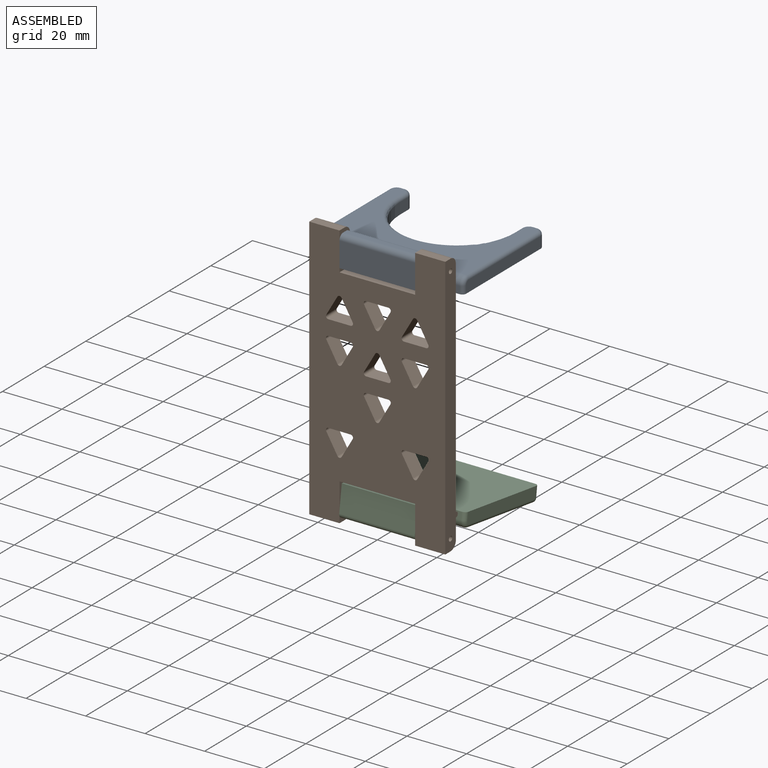
[diagram: assembled view]
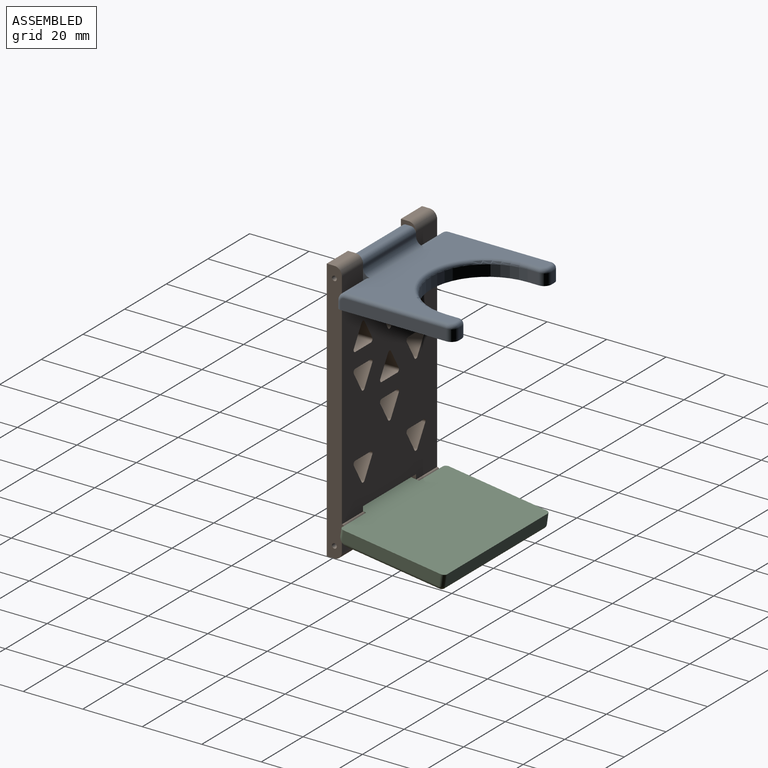
[diagram: assembled view, second angle]
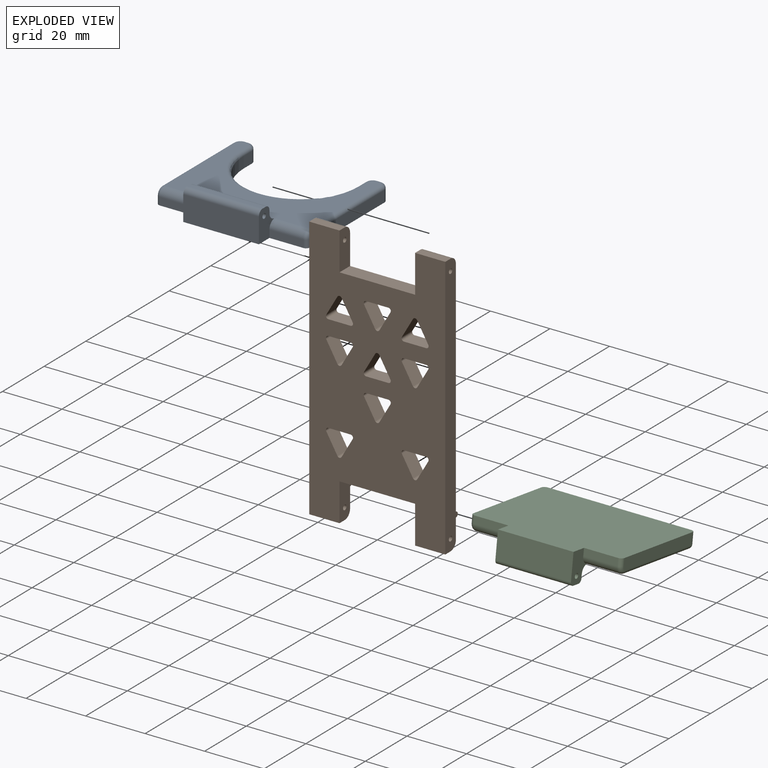
[diagram: exploded view]
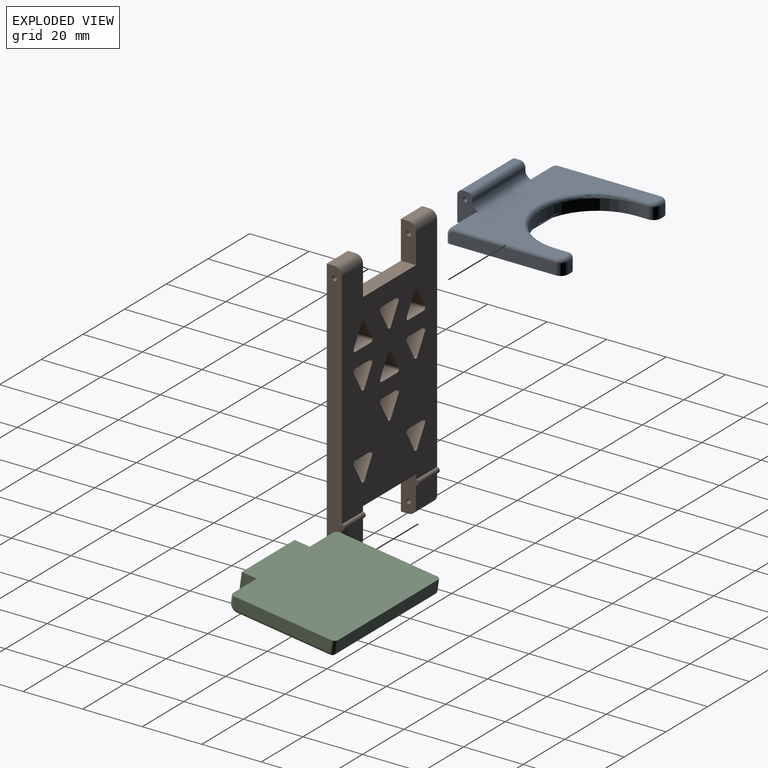
[diagram: exploded view, second angle]
ASSEMBLY  parts=3 mates=2
PART A: 41 faces, bbox 51.2x10.2x44.7 mm
  f0: plane 48.26x35.56mm, normal (0,-1,0), area 859.7mm2, adj f17,f18,f19,f28,f29,f30,f31,f32
  f1: plane 3.81x3.81mm, normal (1,0,0), area 14.5mm2, adj f7,f8,f22,f34
  f2: plane 3.81x1.27mm, normal (0,0,1), area 4.8mm2, adj f8,f22,f23,f36
  f3: plane 35.56x3.81mm, normal (-1,0,0), area 135.1mm2, adj f8,f23,f38,f39,f40
  f4: plane 11.43x2.54mm, normal (0,0,-1), area 29mm2, adj f5,f8,f18,f40
  f5: plane 10.16x7.62mm, normal (-1,0,0), area 50.9mm2, adj f4,f6,f8,f14,f15,f16,f18,f19
  f6: plane 25.4x8.38mm, normal (0,0,-1), area 212.9mm2, adj f5,f8,f13,f24
  f7: cylinder r=19.05mm len=38.1mm, axis (0,1,0), area 228mm2, adj f1,f8,f9,f33
  f8: plane 50.8x44.45mm, normal (0,1,0), area 1310.8mm2, adj f1,f2,f3,f4,f5,f6,f7,f9
  f9: plane 3.81x3.81mm, normal (-1,0,0), area 14.5mm2, adj f7,f8,f21,f32
  f10: plane 3.81x1.27mm, normal (0,0,1), area 4.8mm2, adj f8,f20,f21,f30
  f11: plane 35.56x3.81mm, normal (1,0,0), area 135.1mm2, adj f8,f20,f26,f27,f28
  f12: plane 11.43x2.54mm, normal (0,0,-1), area 29mm2, adj f8,f13,f17,f26
  f13: plane 10.16x7.62mm, normal (1,0,0), area 50.9mm2, adj f6,f8,f12,f14,f15,f16,f17,f19
  f14: plane 25.4x0.76mm, normal (0,0,1), area 19.4mm2, adj f5,f13,f19,f25
  f15: plane 25.4x1.52mm, normal (0,-1,0), area 38.7mm2, adj f5,f13,f24,f25
  f16: cylinder r=0.81mm len=25.4mm, axis (-1,0,0), area 129.9mm2, adj f5,f13
  f17: cylinder r=2.54mm len=11.43mm, axis (1,0,0), area 45.6mm2, adj f0,f12,f13,f27
  f18: cylinder r=2.54mm len=11.43mm, axis (-1,0,0), area 45.6mm2, adj f0,f4,f5,f39
  f19: cylinder r=2.54mm len=25.4mm, axis (-1,0,0), area 101.3mm2, adj f0,f5,f13,f14
  f20: cylinder r=2.54mm len=3.81mm, axis (0,1,0), area 15.2mm2, adj f8,f10,f11,f29
  f21: cylinder r=2.54mm len=3.81mm, axis (0,-1,0), area 15.2mm2, adj f8,f9,f10,f31
  f22: cylinder r=2.54mm len=3.81mm, axis (0,-1,0), area 15.2mm2, adj f1,f2,f8,f35
  f23: cylinder r=2.54mm len=3.81mm, axis (0,1,0), area 15.2mm2, adj f2,f3,f8,f37
  f24: cylinder r=1.78mm len=25.4mm, axis (-1,0,0), area 70.9mm2, adj f5,f6,f13,f15
  f25: cylinder r=1.78mm len=25.4mm, axis (1,0,0), area 70.9mm2, adj f5,f13,f14,f15
  f26: cylinder r=1.27mm len=2.54mm, axis (0,1,0), area 5.1mm2, adj f8,f11,f12,f27
  f27: torus R=1.27mm, axis (-1,0,0), area 6.5mm2, adj f11,f17,f26,f28
  f28: cylinder r=1.27mm len=34.29mm, axis (0,0,1), area 68.4mm2, adj f0,f11,f27,f29
  f29: torus R=1.27mm, axis (0,-1,0), area 6.5mm2, adj f0,f20,f28,f30
  f30: cylinder r=1.27mm len=1.27mm, axis (-1,0,0), area 2.5mm2, adj f0,f10,f29,f31
  f31: torus R=1.27mm, axis (0,-1,0), area 6.5mm2, adj f0,f21,f30,f32
  f32: cylinder r=1.27mm len=3.81mm, axis (0,0,-1), area 7.6mm2, adj f0,f9,f31,f33
  f33: torus R=20.32mm, axis (0,-1,0), area 122.3mm2, adj f0,f7,f32,f34
  f34: cylinder r=1.27mm len=3.81mm, axis (0,0,-1), area 7.6mm2, adj f0,f1,f33,f35
  f35: torus R=1.27mm, axis (0,-1,0), area 6.5mm2, adj f0,f22,f34,f36
  f36: cylinder r=1.27mm len=1.27mm, axis (1,0,0), area 2.5mm2, adj f0,f2,f35,f37
  f37: torus R=1.27mm, axis (0,-1,0), area 6.5mm2, adj f0,f23,f36,f38
  f38: cylinder r=1.27mm len=34.29mm, axis (0,0,1), area 68.4mm2, adj f0,f3,f37,f39
  f39: torus R=1.27mm, axis (1,0,0), area 6.5mm2, adj f3,f18,f38,f40
  f40: cylinder r=1.27mm len=2.54mm, axis (0,1,0), area 5.1mm2, adj f3,f4,f8,f39
PART B: 80 faces, bbox 45.7x6x88.9 mm
  f0: plane 75.31x45.72mm, normal (0,1,0), area 2744.5mm2, adj f2,f4,f5,f6,f9,f10,f12,f13
  f1: plane 88.9x45.72mm, normal (0,-1,0), area 3020.6mm2, adj f4,f5,f6,f7,f9,f10,f11,f12
  f2: cylinder r=0.89mm len=10.16mm, axis (1,0,0), area 28.4mm2, adj f0,f3,f4,f10
  f3: plane 10.16x6.73mm, normal (0,1,0), area 68.4mm2, adj f2,f4,f10,f23
  f4: plane 88.9x5.97mm, normal (-1,0,0), area 445.9mm2, adj f0,f1,f2,f3,f7,f11,f19,f20
  f5: plane 25.4x5.08mm, normal (0,0,1), area 129mm2, adj f0,f1,f6,f15
  f6: plane 12.7x5.08mm, normal (1,0,0), area 61mm2, adj f0,f1,f5,f7,f20,f24
  f7: plane 10.16x2.54mm, normal (0,0,1), area 25.8mm2, adj f1,f4,f6,f24
  f8: plane 10.16x6.73mm, normal (0,1,0), area 68.4mm2, adj f12,f13,f22,f25
  f9: plane 25.4x5.08mm, normal (0,0,-1), area 129mm2, adj f0,f1,f10,f13
  f10: plane 12.7x5.97mm, normal (1,0,0), area 62.3mm2, adj f0,f1,f2,f3,f9,f11,f19,f23
  f11: plane 10.16x2.54mm, normal (0,0,-1), area 25.8mm2, adj f1,f4,f10,f23
  f12: plane 88.9x5.97mm, normal (1,0,0), area 445.9mm2, adj f0,f1,f8,f14,f16,f17,f18,f21
  f13: plane 12.7x5.97mm, normal (-1,0,0), area 62.3mm2, adj f0,f1,f8,f9,f14,f18,f22,f25
  f14: plane 10.16x2.54mm, normal (0,0,-1), area 25.8mm2, adj f1,f12,f13,f22
  f15: plane 12.7x5.08mm, normal (-1,0,0), area 61mm2, adj f0,f1,f5,f16,f17,f21
  f16: plane 10.16x2.54mm, normal (0,0,1), area 25.8mm2, adj f1,f12,f15,f21
  f17: cylinder r=0.81mm len=10.16mm, axis (-1,0,0), area 52mm2, adj f12,f15
  f18: cylinder r=0.81mm len=10.16mm, axis (-1,0,0), area 52mm2, adj f12,f13
  f19: cylinder r=0.81mm len=10.16mm, axis (-1,0,0), area 52mm2, adj f4,f10
  f20: cylinder r=0.81mm len=10.16mm, axis (-1,0,0), area 52mm2, adj f4,f6
  f21: cylinder r=2.54mm len=10.16mm, axis (1,0,0), area 40.5mm2, adj f0,f12,f15,f16
  f22: cylinder r=2.54mm len=10.16mm, axis (1,0,0), area 40.5mm2, adj f8,f12,f13,f14
  f23: cylinder r=2.54mm len=10.16mm, axis (-1,0,0), area 40.5mm2, adj f3,f4,f10,f11
  f24: cylinder r=2.54mm len=10.16mm, axis (-1,0,0), area 40.5mm2, adj f0,f4,f6,f7
  f25: cylinder r=0.89mm len=10.16mm, axis (1,0,0), area 28.4mm2, adj f0,f8,f12,f13
  f26: cylinder r=0.8mm len=5.08mm, axis (0,1,0), area 8.6mm2, adj f0,f1,f27,f31
  f27: plane 7.48x5.08mm, normal (0,0,-1), area 38mm2, adj f0,f1,f26,f28
  f28: cylinder r=0.8mm len=5.08mm, axis (0,1,0), area 8.6mm2, adj f0,f1,f27,f29
  f29: plane 6.48x5.08mm, normal (-0.87,0,0.5), area 38mm2, adj f0,f1,f28,f30
  f30: cylinder r=0.8mm len=5.08mm, axis (0,1,0), area 8.6mm2, adj f0,f1,f29,f31
  f31: plane 6.48x5.08mm, normal (0.87,0,0.5), area 38mm2, adj f0,f1,f26,f30
  f32: cylinder r=0.8mm len=5.08mm, axis (0,1,0), area 8.6mm2, adj f0,f1,f33,f37
  f33: plane 7.48x5.08mm, normal (0,0,-1), area 38mm2, adj f0,f1,f32,f34
  f34: cylinder r=0.8mm len=5.08mm, axis (0,1,0), area 8.6mm2, adj f0,f1,f33,f35
  f35: plane 6.48x5.08mm, normal (-0.87,0,0.5), area 38mm2, adj f0,f1,f34,f36
  f36: cylinder r=0.8mm len=5.08mm, axis (0,1,0), area 8.6mm2, adj f0,f1,f35,f37
  f37: plane 6.48x5.08mm, normal (0.87,0,0.5), area 38mm2, adj f0,f1,f32,f36
  f38: cylinder r=0.8mm len=5.08mm, axis (0,1,0), area 8.6mm2, adj f0,f1,f39,f43
  f39: plane 6.48x5.08mm, normal (0.87,0,-0.5), area 38mm2, adj f0,f1,f38,f40
  f40: cylinder r=0.8mm len=5.08mm, axis (0,1,0), area 8.6mm2, adj f0,f1,f39,f41
  f41: plane 6.48x5.08mm, normal (-0.87,0,-0.5), area 38mm2, adj f0,f1,f40,f42
  f42: cylinder r=0.8mm len=5.08mm, axis (0,1,0), area 8.6mm2, adj f0,f1,f41,f43
  f43: plane 7.48x5.08mm, normal (0,0,1), area 38mm2, adj f0,f1,f38,f42
  f44: cylinder r=0.8mm len=5.08mm, axis (0,1,0), area 8.6mm2, adj f0,f1,f45,f49
  f45: plane 7.48x5.08mm, normal (0,0,-1), area 38mm2, adj f0,f1,f44,f46
  f46: cylinder r=0.8mm len=5.08mm, axis (0,1,0), area 8.6mm2, adj f0,f1,f45,f47
  f47: plane 6.48x5.08mm, normal (-0.87,0,0.5), area 38mm2, adj f0,f1,f46,f48
  f48: cylinder r=0.8mm len=5.08mm, axis (0,1,0), area 8.6mm2, adj f0,f1,f47,f49
  f49: plane 6.48x5.08mm, normal (0.87,0,0.5), area 38mm2, adj f0,f1,f44,f48
  f50: cylinder r=0.8mm len=5.08mm, axis (0,1,0), area 8.6mm2, adj f0,f1,f51,f55
  f51: plane 6.48x5.08mm, normal (0.87,0,-0.5), area 38mm2, adj f0,f1,f50,f52
  f52: cylinder r=0.8mm len=5.08mm, axis (0,1,0), area 8.6mm2, adj f0,f1,f51,f53
  f53: plane 6.48x5.08mm, normal (-0.87,0,-0.5), area 38mm2, adj f0,f1,f52,f54
  f54: cylinder r=0.8mm len=5.08mm, axis (0,1,0), area 8.6mm2, adj f0,f1,f53,f55
  f55: plane 7.48x5.08mm, normal (0,0,1), area 38mm2, adj f0,f1,f50,f54
  f56: cylinder r=0.8mm len=5.08mm, axis (0,1,0), area 8.6mm2, adj f0,f1,f57,f61
  f57: plane 7.48x5.08mm, normal (0,0,-1), area 38mm2, adj f0,f1,f56,f58
  f58: cylinder r=0.8mm len=5.08mm, axis (0,1,0), area 8.6mm2, adj f0,f1,f57,f59
  f59: plane 6.48x5.08mm, normal (-0.87,0,0.5), area 38mm2, adj f0,f1,f58,f60
  f60: cylinder r=0.8mm len=5.08mm, axis (0,1,0), area 8.6mm2, adj f0,f1,f59,f61
  f61: plane 6.48x5.08mm, normal (0.87,0,0.5), area 38mm2, adj f0,f1,f56,f60
  f62: cylinder r=0.8mm len=5.08mm, axis (0,1,0), area 8.6mm2, adj f0,f1,f63,f67
  f63: plane 6.48x5.08mm, normal (0.87,0,-0.5), area 38mm2, adj f0,f1,f62,f64
  f64: cylinder r=0.8mm len=5.08mm, axis (0,1,0), area 8.6mm2, adj f0,f1,f63,f65
  f65: plane 6.48x5.08mm, normal (-0.87,0,-0.5), area 38mm2, adj f0,f1,f64,f66
  f66: cylinder r=0.8mm len=5.08mm, axis (0,1,0), area 8.6mm2, adj f0,f1,f65,f67
  f67: plane 7.48x5.08mm, normal (0,0,1), area 38mm2, adj f0,f1,f62,f66
  f68: cylinder r=0.8mm len=5.08mm, axis (0,1,0), area 8.6mm2, adj f0,f1,f69,f73
  f69: plane 7.48x5.08mm, normal (0,0,-1), area 38mm2, adj f0,f1,f68,f70
  f70: cylinder r=0.8mm len=5.08mm, axis (0,1,0), area 8.6mm2, adj f0,f1,f69,f71
  f71: plane 6.48x5.08mm, normal (-0.87,0,0.5), area 38mm2, adj f0,f1,f70,f72
  f72: cylinder r=0.8mm len=5.08mm, axis (0,1,0), area 8.6mm2, adj f0,f1,f71,f73
  f73: plane 6.48x5.08mm, normal (0.87,0,0.5), area 38mm2, adj f0,f1,f68,f72
  f74: cylinder r=0.8mm len=5.08mm, axis (0,1,0), area 8.6mm2, adj f0,f1,f75,f79
  f75: plane 7.48x5.08mm, normal (0,0,-1), area 38mm2, adj f0,f1,f74,f76
  f76: cylinder r=0.8mm len=5.08mm, axis (0,1,0), area 8.6mm2, adj f0,f1,f75,f77
  f77: plane 6.48x5.08mm, normal (-0.87,0,0.5), area 38mm2, adj f0,f1,f76,f78
  f78: cylinder r=0.8mm len=5.08mm, axis (0,1,0), area 8.6mm2, adj f0,f1,f77,f79
  f79: plane 6.48x5.08mm, normal (0.87,0,0.5), area 38mm2, adj f0,f1,f74,f78
PART C: 29 faces, bbox 50.8x10.2x40.6 mm
  f0: plane 33.02x3.81mm, normal (1,0,0), area 125.5mm2, adj f7,f20,f22,f24,f28
  f1: plane 33.02x3.81mm, normal (-1,0,0), area 125.5mm2, adj f7,f16,f17,f18,f26
  f2: plane 48.26x31.75mm, normal (0,-1,0), area 1532.3mm2, adj f13,f18,f21,f22,f25,f27
  f3: plane 25.4x8.89mm, normal (0,0,1), area 225.8mm2, adj f4,f7,f8,f14
  f4: plane 10.16x7.62mm, normal (-1,0,0), area 51.6mm2, adj f3,f5,f7,f10,f11,f12,f13,f14
  f5: plane 11.43x2.54mm, normal (0,0,1), area 29mm2, adj f4,f7,f16,f25
  f6: plane 48.26x3.81mm, normal (0,0,-1), area 183.9mm2, adj f7,f17,f21,f24
  f7: plane 50.8x40.64mm, normal (0,1,0), area 1934.1mm2, adj f0,f1,f3,f4,f5,f6,f8,f9
  f8: plane 10.16x7.62mm, normal (1,0,0), area 51.6mm2, adj f3,f7,f9,f10,f11,f12,f13,f14
  f9: plane 11.43x2.54mm, normal (0,0,1), area 29mm2, adj f7,f8,f20,f27
  f10: plane 25.4x1.27mm, normal (0,0,-1), area 32.3mm2, adj f4,f8,f13,f15
  f11: plane 25.4x2.54mm, normal (0,-1,0), area 64.5mm2, adj f4,f8,f14,f15
  f12: cylinder r=0.81mm len=25.4mm, axis (1,0,0), area 129.9mm2, adj f4,f8
  f13: cylinder r=2.54mm len=25.4mm, axis (1,0,0), area 101.3mm2, adj f2,f4,f8,f10
  f14: cylinder r=1.27mm len=25.4mm, axis (1,0,0), area 50.7mm2, adj f3,f4,f8,f11
  f15: cylinder r=1.27mm len=25.4mm, axis (-1,0,0), area 50.7mm2, adj f4,f8,f10,f11
  f16: cylinder r=1.27mm len=2.54mm, axis (0,1,0), area 5.1mm2, adj f1,f5,f7,f26
  f17: cylinder r=1.27mm len=3.81mm, axis (0,1,0), area 7.6mm2, adj f1,f6,f7,f19
  f18: cylinder r=1.27mm len=31.75mm, axis (0,0,1), area 63.3mm2, adj f1,f2,f19,f26
  f19: sphere r=1.27mm, area 2.5mm2, adj f17,f18,f21
  f20: cylinder r=1.27mm len=2.54mm, axis (0,1,0), area 5.1mm2, adj f0,f7,f9,f28
  f21: cylinder r=1.27mm len=48.26mm, axis (-1,0,0), area 96.3mm2, adj f2,f6,f19,f23
  f22: cylinder r=1.27mm len=31.75mm, axis (0,0,1), area 63.3mm2, adj f0,f2,f23,f28
  f23: sphere r=1.27mm, area 2.5mm2, adj f21,f22,f24
  f24: cylinder r=1.27mm len=3.81mm, axis (0,1,0), area 7.6mm2, adj f0,f6,f7,f23
  f25: cylinder r=2.54mm len=11.43mm, axis (1,0,0), area 45.6mm2, adj f2,f4,f5,f26
  f26: torus R=1.27mm, axis (1,0,0), area 6.5mm2, adj f1,f16,f18,f25
  f27: cylinder r=2.54mm len=11.43mm, axis (-1,0,0), area 45.6mm2, adj f2,f8,f9,f28
  f28: torus R=1.27mm, axis (-1,0,0), area 6.5mm2, adj f0,f20,f22,f27
PLACE A rot(axis=(-1,0,0),90deg) t=(0,-41.91,33.6)mm
PLACE B t=(0,5.08,0.58)mm
PLACE C rot(axis=(1,0,0),82deg) t=(0,-42.93,-25.98)mm
MATE revolute A.f16 <-> B.f17  axis (-1,0,0) through (-12.7,2.54,41.22)mm
MATE revolute C.f12 <-> B.f18  axis (-1,0,0) through (-12.7,2.54,-40.06)mm
